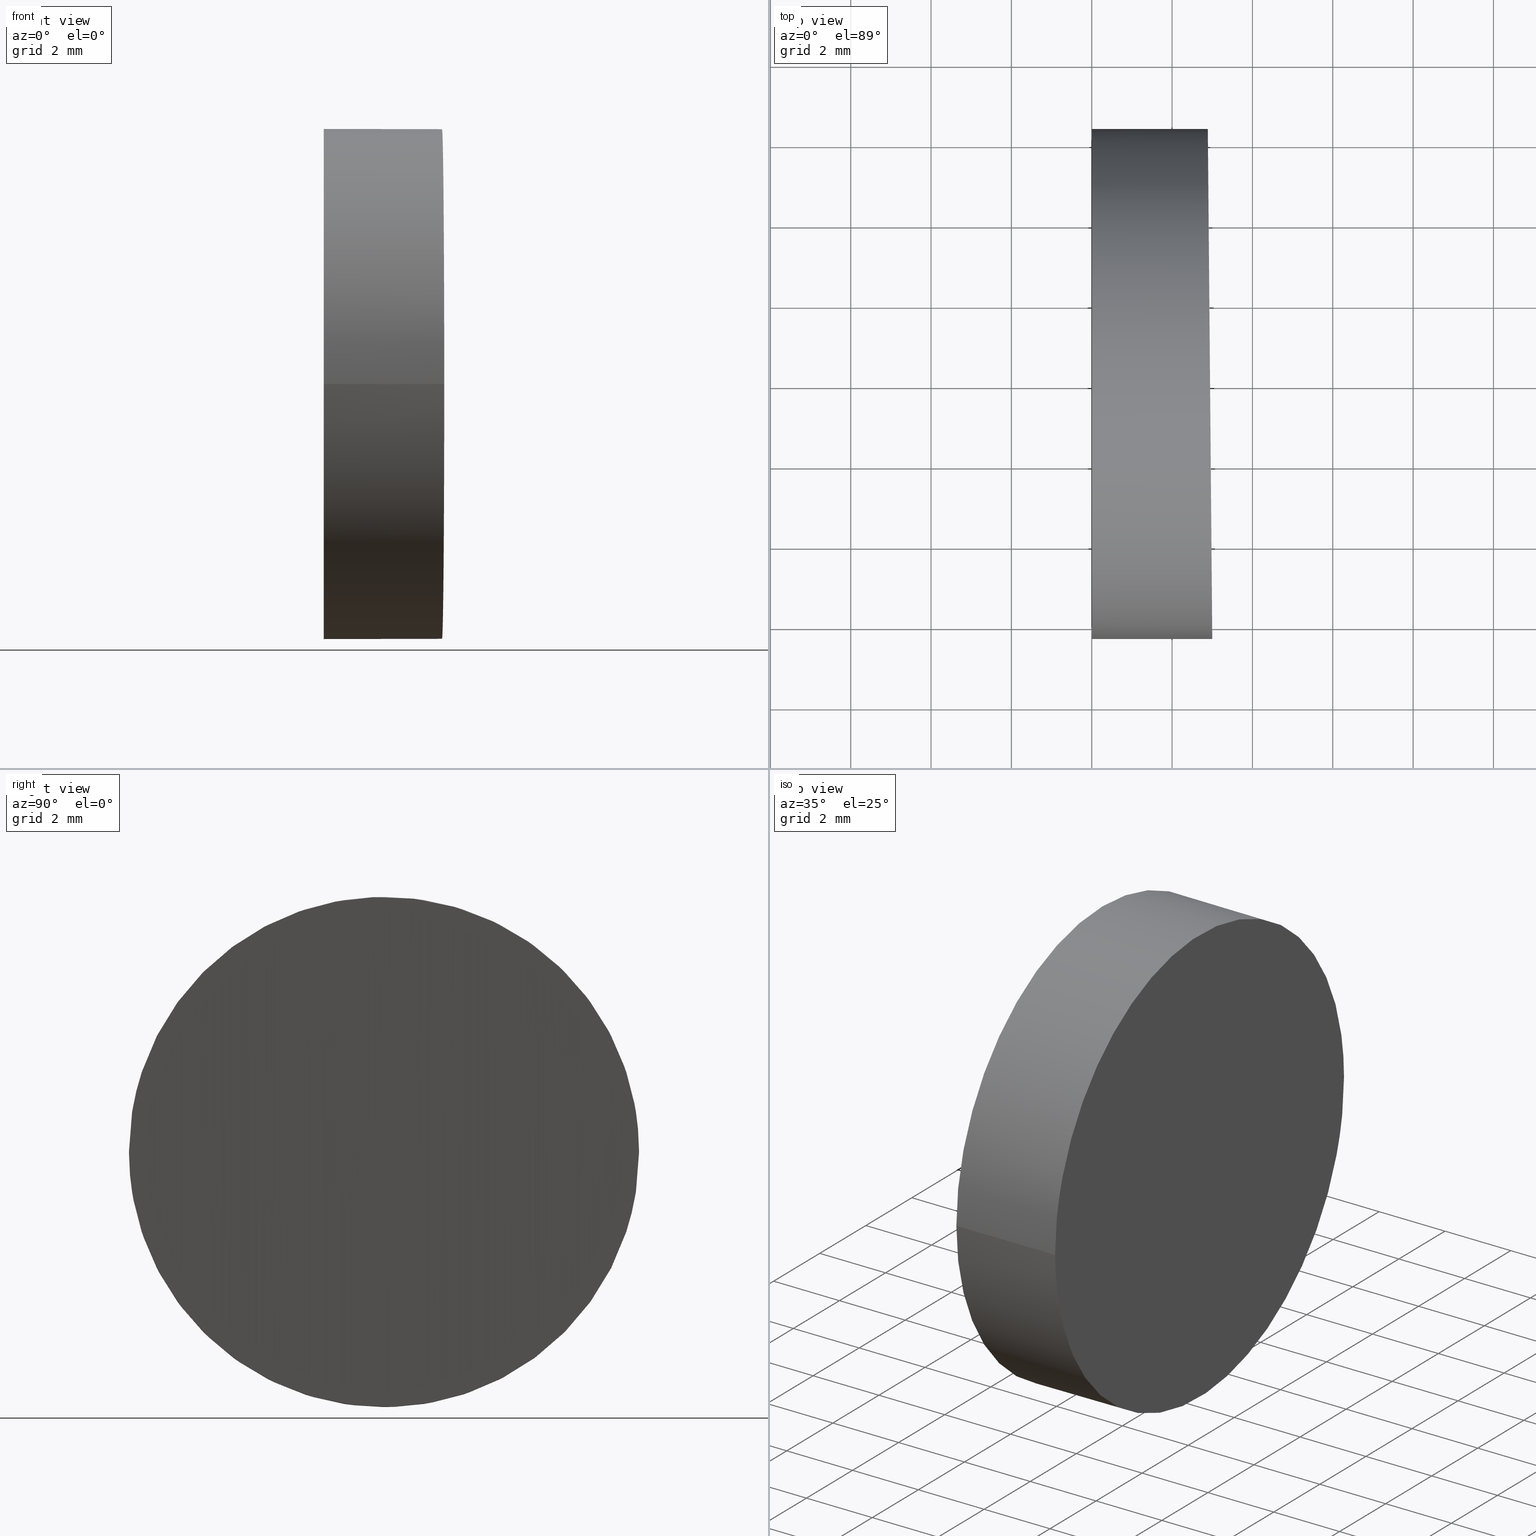
[diagram: canonical four-view strip — front | top / right | iso, engineering-drawing reading convention]
A machine part, canonical four-view strip (front | top / right | iso — engineering-drawing reading convention). The complete STEP part file that produces these views, byte-faithful:
ISO-10303-21;
HEADER;
FILE_DESCRIPTION (( 'STEP AP214' ),
    '1' );
FILE_NAME ('197501.STEP',
    '2019-07-08T05:26:47',
    ( 'user' ),
    ( '΢���й�' ),
    'SwSTEP 2.0',
    'SolidWorks 2016',
    '' );
FILE_SCHEMA (( 'AUTOMOTIVE_DESIGN' ));
ENDSEC;

DATA;
#1 = UNCERTAINTY_MEASURE_WITH_UNIT (LENGTH_MEASURE( 1.000000000000000100E-005 ), #90, 'distance_accuracy_value', 'NONE');
#2 = ORIENTED_EDGE ( 'NONE', *, *, #13, .T. ) ;
#3 = CARTESIAN_POINT ( 'NONE',  ( 3.000000000000001800, -6.350000000000000500, 6.349999999999999600 ) ) ;
#4 = FILL_AREA_STYLE_COLOUR ( '', #28 ) ;
#5 = AXIS2_PLACEMENT_3D ( 'NONE', #59, #37, #64 ) ;
#6 = ORIENTED_EDGE ( 'NONE', *, *, #13, .F. ) ;
#7 =( NAMED_UNIT ( * ) PLANE_ANGLE_UNIT ( ) SI_UNIT ( $, .RADIAN. ) );
#8 = PRODUCT_DEFINITION ( 'δ֪', '', #95, #80 ) ;
#9 = CIRCLE ( 'NONE', #42, 6.350000000000000500 ) ;
#10 = LINE ( 'NONE', #118, #96 ) ;
#11 =( GEOMETRIC_REPRESENTATION_CONTEXT ( 3 ) GLOBAL_UNCERTAINTY_ASSIGNED_CONTEXT ( ( #126 ) ) GLOBAL_UNIT_ASSIGNED_CONTEXT ( ( #76, #7, #112 ) ) REPRESENTATION_CONTEXT ( 'NONE', 'WORKASPACE' ) );
#12 = ORIENTED_EDGE ( 'NONE', *, *, #51, .T. ) ;
#13 = EDGE_CURVE ( 'NONE', #52, #131, #9, .T. ) ;
#14 = DIRECTION ( 'NONE',  ( -1.000000000000000000, -1.224646799147353200E-016, 0.0000000000000000000 ) ) ;
#15 = CARTESIAN_POINT ( 'NONE',  ( 0.0000000000000000000, 0.0000000000000000000, 6.349999999999999600 ) ) ;
#16 = SURFACE_STYLE_USAGE ( .BOTH. , #33 ) ;
#17 = ORIENTED_EDGE ( 'NONE', *, *, #98, .F. ) ;
#18 = PRODUCT_DEFINITION_SHAPE ( 'NONE', 'NONE',  #8 ) ;
#19 = DIRECTION ( 'NONE',  ( 1.224646799147353200E-016, -1.000000000000000000, 0.0000000000000000000 ) ) ;
#20 =( NAMED_UNIT ( * ) SI_UNIT ( $, .STERADIAN. ) SOLID_ANGLE_UNIT ( ) );
#21 =( NAMED_UNIT ( * ) SI_UNIT ( $, .STERADIAN. ) SOLID_ANGLE_UNIT ( ) );
#22 = PLANE ( 'NONE',  #35 ) ;
#23 = AXIS2_PLACEMENT_3D ( 'NONE', #84, #14, #19 ) ;
#24 = APPLICATION_PROTOCOL_DEFINITION ( 'draft international standard', 'automotive_design', 1998, #36 ) ;
#25 = ORIENTED_EDGE ( 'NONE', *, *, #106, .F. ) ;
#26 = APPLICATION_CONTEXT ( 'automotive_design' ) ;
#27 = CARTESIAN_POINT ( 'NONE',  ( 10.00000000000000000, 1.224646799147353300E-015, 6.349999999999999600 ) ) ;
#28 = COLOUR_RGB ( '',1.000000000000000000, 1.000000000000000000, 1.000000000000000000 ) ;
#29 = CYLINDRICAL_SURFACE ( 'NONE', #73, 6.350000000000000500 ) ;
#30 = MECHANICAL_DESIGN_GEOMETRIC_PRESENTATION_REPRESENTATION (  '', ( #40 ), #11 ) ;
#31 = EDGE_CURVE ( 'NONE', #131, #52, #55, .T. ) ;
#32 = ADVANCED_FACE ( 'NONE', ( #50 ), #29, .T. ) ;
#33 = SURFACE_SIDE_STYLE ('',( #111 ) ) ;
#34 = FACE_OUTER_BOUND ( 'NONE', #93, .T. ) ;
#35 = AXIS2_PLACEMENT_3D ( 'NONE', #60, #79, #102 ) ;
#36 = APPLICATION_CONTEXT ( 'automotive_design' ) ;
#37 = DIRECTION ( 'NONE',  ( 0.0000000000000000000, 0.0000000000000000000, 1.000000000000000000 ) ) ;
#38 =( LENGTH_UNIT ( ) NAMED_UNIT ( * ) SI_UNIT ( .MILLI., .METRE. ) );
#39 = CLOSED_SHELL ( 'NONE', ( #82, #74, #133, #32 ) ) ;
#40 = STYLED_ITEM ( 'NONE', ( #45 ), #135 ) ;
#41 = ORIENTED_EDGE ( 'NONE', *, *, #98, .T. ) ;
#42 = AXIS2_PLACEMENT_3D ( 'NONE', #15, #67, #109 ) ;
#43 = MECHANICAL_DESIGN_GEOMETRIC_PRESENTATION_REPRESENTATION (  '', ( #56 ), #81 ) ;
#44 = ORIENTED_EDGE ( 'NONE', *, *, #51, .F. ) ;
#45 = PRESENTATION_STYLE_ASSIGNMENT (( #16 ) ) ;
#46 = CARTESIAN_POINT ( 'NONE',  ( 7.776507174585693100E-016, -6.350000000000000500, 6.349999999999999600 ) ) ;
#47 = ADVANCED_BREP_SHAPE_REPRESENTATION ( '197501', ( #135, #5 ), #92 ) ;
#48 = SURFACE_STYLE_FILL_AREA ( #58 ) ;
#49 = DIRECTION ( 'NONE',  ( -1.224646799147353200E-016, 1.000000000000000000, 0.0000000000000000000 ) ) ;
#50 = FACE_OUTER_BOUND ( 'NONE', #101, .T. ) ;
#51 = EDGE_CURVE ( 'NONE', #128, #86, #94, .T. ) ;
#52 = VERTEX_POINT ( 'NONE', #46 ) ;
#53 = DIRECTION ( 'NONE',  ( 0.0000000000000000000, -1.000000000000000000, 0.0000000000000000000 ) ) ;
#54 = PRODUCT ( '197501', '197501', '', ( #134 ) ) ;
#55 = CIRCLE ( 'NONE', #23, 6.350000000000000500 ) ;
#56 = STYLED_ITEM ( 'NONE', ( #68 ), #47 ) ;
#57 = DIRECTION ( 'NONE',  ( -1.000000000000000000, -1.224646799147353200E-016, -0.0000000000000000000 ) ) ;
#58 = FILL_AREA_STYLE ('',( #4 ) ) ;
#59 = CARTESIAN_POINT ( 'NONE',  ( 0.0000000000000000000, 0.0000000000000000000, 0.0000000000000000000 ) ) ;
#60 = CARTESIAN_POINT ( 'NONE',  ( 3.000000000000001800, -6.350000000000001400, 12.69999999999999900 ) ) ;
#61 = SHAPE_DEFINITION_REPRESENTATION ( #18, #47 ) ;
#62 = AXIS2_PLACEMENT_3D ( 'NONE', #119, #121, #49 ) ;
#63 = PRESENTATION_LAYER_ASSIGNMENT (  '', '', ( #56 ) ) ;
#64 = DIRECTION ( 'NONE',  ( 1.000000000000000000, 0.0000000000000000000, 0.0000000000000000000 ) ) ;
#65 = FILL_AREA_STYLE ('',( #123 ) ) ;
#66 = ORIENTED_EDGE ( 'NONE', *, *, #31, .T. ) ;
#67 = DIRECTION ( 'NONE',  ( -1.000000000000000000, -1.224646799147353200E-016, 0.0000000000000000000 ) ) ;
#68 = PRESENTATION_STYLE_ASSIGNMENT (( #127 ) ) ;
#69 = CARTESIAN_POINT ( 'NONE',  ( 3.000000000000001800, -6.350000000000002300, 19.04999999999999700 ) ) ;
#70 = EDGE_LOOP ( 'NONE', ( #44, #17 ) ) ;
#71 = ORIENTED_EDGE ( 'NONE', *, *, #89, .F. ) ;
#72 = DIRECTION ( 'NONE',  ( -1.000000000000000000, -1.224646799147353200E-016, -0.0000000000000000000 ) ) ;
#73 = AXIS2_PLACEMENT_3D ( 'NONE', #75, #57, #53 ) ;
#74 = ADVANCED_FACE ( 'NONE', ( #34 ), #104, .F. ) ;
#75 = CARTESIAN_POINT ( 'NONE',  ( 10.00000000000000000, 1.224646799147353300E-015, 6.349999999999999600 ) ) ;
#76 =( LENGTH_UNIT ( ) NAMED_UNIT ( * ) SI_UNIT ( .MILLI., .METRE. ) );
#77 = FACE_OUTER_BOUND ( 'NONE', #70, .T. ) ;
#78 = DIRECTION ( 'NONE',  ( -1.000000000000000000, -1.224646799147353200E-016, -0.0000000000000000000 ) ) ;
#79 = DIRECTION ( 'NONE',  ( -0.9999619230641714200, -0.008726535498367004500, 0.0000000000000000000 ) ) ;
#80 = PRODUCT_DEFINITION_CONTEXT ( 'detailed design', #26, 'design' ) ;
#81 =( GEOMETRIC_REPRESENTATION_CONTEXT ( 3 ) GLOBAL_UNCERTAINTY_ASSIGNED_CONTEXT ( ( #107 ) ) GLOBAL_UNIT_ASSIGNED_CONTEXT ( ( #38, #87, #21 ) ) REPRESENTATION_CONTEXT ( 'NONE', 'WORKASPACE' ) );
#82 = ADVANCED_FACE ( 'NONE', ( #99 ), #114, .T. ) ;
#83 = LINE ( 'NONE', #116, #91 ) ;
#84 = CARTESIAN_POINT ( 'NONE',  ( 0.0000000000000000000, 0.0000000000000000000, 6.349999999999999600 ) ) ;
#85 = APPLICATION_PROTOCOL_DEFINITION ( 'draft international standard', 'automotive_design', 1998, #26 ) ;
#86 = VERTEX_POINT ( 'NONE', #139 ) ;
#87 =( NAMED_UNIT ( * ) PLANE_ANGLE_UNIT ( ) SI_UNIT ( $, .RADIAN. ) );
#88 =( NAMED_UNIT ( * ) PLANE_ANGLE_UNIT ( ) SI_UNIT ( $, .RADIAN. ) );
#89 = EDGE_CURVE ( 'NONE', #86, #131, #83, .T. ) ;
#90 =( LENGTH_UNIT ( ) NAMED_UNIT ( * ) SI_UNIT ( .MILLI., .METRE. ) );
#91 = VECTOR ( 'NONE', #72, 1000.000000000000000 ) ;
#92 =( GEOMETRIC_REPRESENTATION_CONTEXT ( 3 ) GLOBAL_UNCERTAINTY_ASSIGNED_CONTEXT ( ( #1 ) ) GLOBAL_UNIT_ASSIGNED_CONTEXT ( ( #90, #88, #20 ) ) REPRESENTATION_CONTEXT ( 'NONE', 'WORKASPACE' ) );
#93 = EDGE_LOOP ( 'NONE', ( #2, #66 ) ) ;
#94 =( BOUNDED_CURVE ( )  B_SPLINE_CURVE ( 3, ( #129, #69, #136, #110 ),
 .UNSPECIFIED., .F., .T. ) 
 B_SPLINE_CURVE_WITH_KNOTS ( ( 4, 4 ),
 ( 3.141592653589793100, 6.283185307179586200 ),
 .UNSPECIFIED. ) 
 CURVE ( )  GEOMETRIC_REPRESENTATION_ITEM ( )  RATIONAL_B_SPLINE_CURVE ( ( 1.000000000000000000, 0.3333333333333333700, 0.3333333333333333700, 1.000000000000000000 ) ) 
 REPRESENTATION_ITEM ( '' )  );
#95 = PRODUCT_DEFINITION_FORMATION_WITH_SPECIFIED_SOURCE ( '�κ�', '', #54, .NOT_KNOWN. ) ;
#96 = VECTOR ( 'NONE', #78, 1000.000000000000000 ) ;
#97 = ORIENTED_EDGE ( 'NONE', *, *, #89, .T. ) ;
#98 = EDGE_CURVE ( 'NONE', #86, #128, #132, .T. ) ;
#99 = FACE_OUTER_BOUND ( 'NONE', #140, .T. ) ;
#100 = CARTESIAN_POINT ( 'NONE',  ( -7.776507174585693100E-016, 6.350000000000000500, 6.350000000000000500 ) ) ;
#101 = EDGE_LOOP ( 'NONE', ( #71, #41, #130, #117 ) ) ;
#102 = DIRECTION ( 'NONE',  ( 0.008726535498367004500, -0.9999619230641714200, 0.0000000000000000000 ) ) ;
#103 = SURFACE_SIDE_STYLE ('',( #48 ) ) ;
#104 = PLANE ( 'NONE',  #62 ) ;
#105 = CARTESIAN_POINT ( 'NONE',  ( 3.000000000000001800, -6.349999999999997000, -6.350000000000005000 ) ) ;
#106 = EDGE_CURVE ( 'NONE', #128, #52, #10, .T. ) ;
#107 = UNCERTAINTY_MEASURE_WITH_UNIT (LENGTH_MEASURE( 1.000000000000000100E-005 ), #38, 'distance_accuracy_value', 'NONE');
#108 = DIRECTION ( 'NONE',  ( -1.000000000000000000, -1.224646799147353200E-016, -0.0000000000000000000 ) ) ;
#109 = DIRECTION ( 'NONE',  ( 1.224646799147353200E-016, -1.000000000000000000, 0.0000000000000000000 ) ) ;
#110 = CARTESIAN_POINT ( 'NONE',  ( 2.889168779057453400, 6.350000000000000500, 6.350000000000000500 ) ) ;
#111 = SURFACE_STYLE_FILL_AREA ( #65 ) ;
#112 =( NAMED_UNIT ( * ) SI_UNIT ( $, .STERADIAN. ) SOLID_ANGLE_UNIT ( ) );
#113 = PRESENTATION_LAYER_ASSIGNMENT (  '', '', ( #40 ) ) ;
#114 = CYLINDRICAL_SURFACE ( 'NONE', #125, 6.350000000000000500 ) ;
#115 = PRODUCT_RELATED_PRODUCT_CATEGORY ( 'part', '', ( #54 ) ) ;
#116 = CARTESIAN_POINT ( 'NONE',  ( 10.00000000000000000, 6.350000000000001400, 6.350000000000000500 ) ) ;
#117 = ORIENTED_EDGE ( 'NONE', *, *, #31, .F. ) ;
#118 = CARTESIAN_POINT ( 'NONE',  ( 10.00000000000000000, -6.349999999999999600, 6.349999999999999600 ) ) ;
#119 = CARTESIAN_POINT ( 'NONE',  ( 1.794220410596685600E-016, 6.349999999999997900, 12.69999999999999900 ) ) ;
#120 = COLOUR_RGB ( '',1.000000000000000000, 1.000000000000000000, 1.000000000000000000 ) ;
#121 = DIRECTION ( 'NONE',  ( 1.000000000000000000, 1.224646799147353200E-016, -0.0000000000000000000 ) ) ;
#122 = CARTESIAN_POINT ( 'NONE',  ( 2.889168779057453000, 6.349999999999999600, -6.350000000000005000 ) ) ;
#123 = FILL_AREA_STYLE_COLOUR ( '', #120 ) ;
#124 = CARTESIAN_POINT ( 'NONE',  ( 2.889168779057453400, 6.350000000000000500, 6.350000000000000500 ) ) ;
#125 = AXIS2_PLACEMENT_3D ( 'NONE', #27, #108, #138 ) ;
#126 = UNCERTAINTY_MEASURE_WITH_UNIT (LENGTH_MEASURE( 1.000000000000000100E-005 ), #76, 'distance_accuracy_value', 'NONE');
#127 = SURFACE_STYLE_USAGE ( .BOTH. , #103 ) ;
#128 = VERTEX_POINT ( 'NONE', #3 ) ;
#129 = CARTESIAN_POINT ( 'NONE',  ( 3.000000000000001800, -6.350000000000000500, 6.349999999999999600 ) ) ;
#130 = ORIENTED_EDGE ( 'NONE', *, *, #106, .T. ) ;
#131 = VERTEX_POINT ( 'NONE', #100 ) ;
#132 =( BOUNDED_CURVE ( )  B_SPLINE_CURVE ( 3, ( #124, #122, #105, #137 ),
 .UNSPECIFIED., .F., .T. ) 
 B_SPLINE_CURVE_WITH_KNOTS ( ( 4, 4 ),
 ( 0.0000000000000000000, 3.141592653589793100 ),
 .UNSPECIFIED. ) 
 CURVE ( )  GEOMETRIC_REPRESENTATION_ITEM ( )  RATIONAL_B_SPLINE_CURVE ( ( 1.000000000000000000, 0.3333333333333333700, 0.3333333333333333700, 1.000000000000000000 ) ) 
 REPRESENTATION_ITEM ( '' )  );
#133 = ADVANCED_FACE ( 'NONE', ( #77 ), #22, .F. ) ;
#134 = PRODUCT_CONTEXT ( 'NONE', #36, 'mechanical' ) ;
#135 = MANIFOLD_SOLID_BREP ( '�г�-����1', #39 ) ;
#136 = CARTESIAN_POINT ( 'NONE',  ( 2.889168779057453000, 6.349999999999999600, 19.05000000000000400 ) ) ;
#137 = CARTESIAN_POINT ( 'NONE',  ( 3.000000000000001800, -6.350000000000000500, 6.349999999999999600 ) ) ;
#138 = DIRECTION ( 'NONE',  ( 0.0000000000000000000, -1.000000000000000000, 0.0000000000000000000 ) ) ;
#139 = CARTESIAN_POINT ( 'NONE',  ( 2.889168779057453400, 6.350000000000000500, 6.350000000000000500 ) ) ;
#140 = EDGE_LOOP ( 'NONE', ( #12, #97, #6, #25 ) ) ;
ENDSEC;
END-ISO-10303-21;
